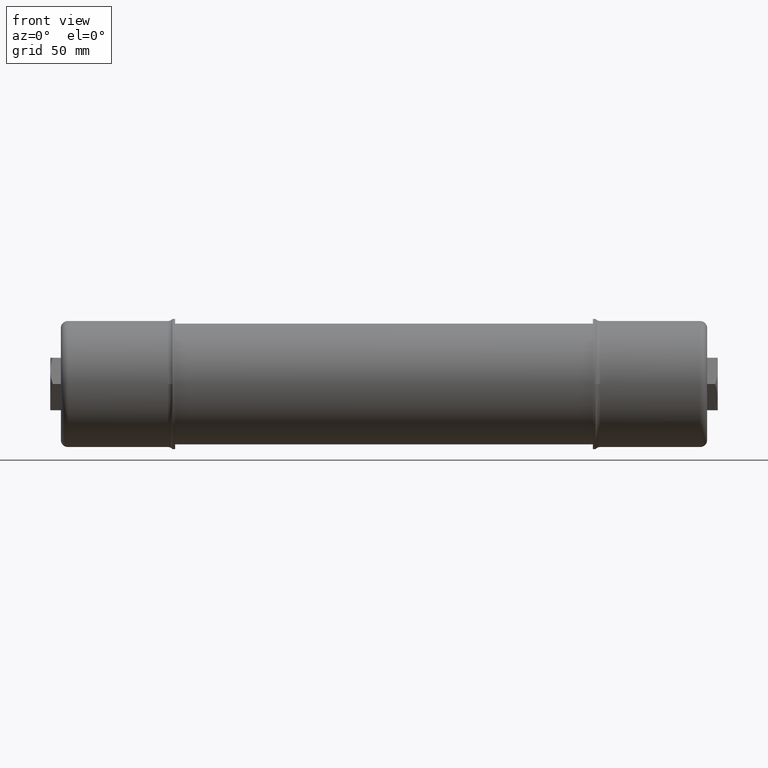
[diagram: clean part render]
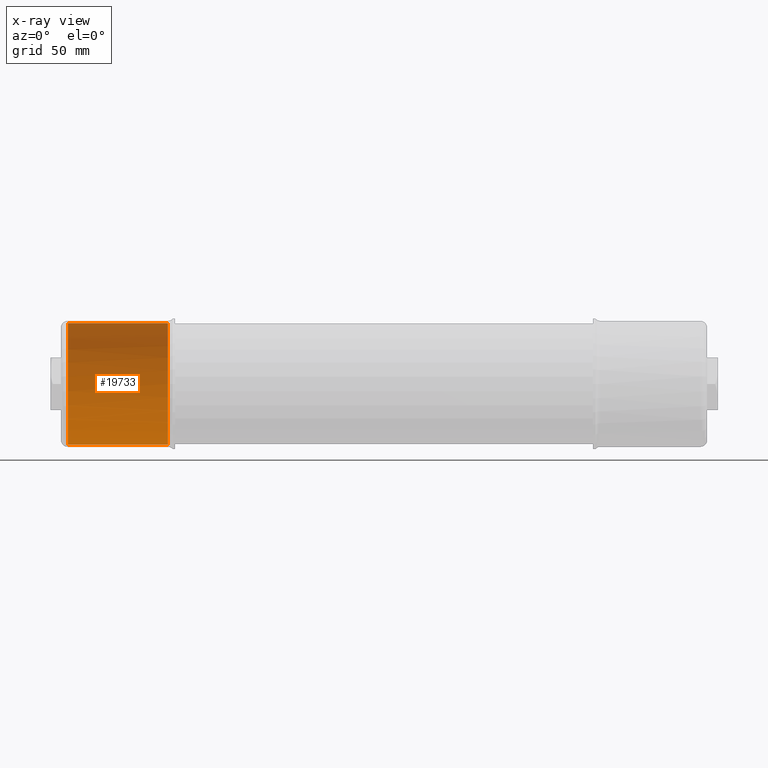
[diagram: x-ray — body ghosted, one internal face saturated and labeled with its STEP entity id]
A machine part, front view, then the same camera in x-ray: the body is ghosted and one INTERNAL B-rep face — a face not visible from any outside direction — is saturated and labeled: STEP entity #19733.
In plain terms, the highlighted cylindrical surface (partial cylindrical patch) has radius 36.703 mm, axis along (1, -0, 0).
Its self-contained STEP definition (entity closure, byte-faithful):
#319 = VERTEX_POINT ( 'NONE', #16680 ) ;
#437 = CARTESIAN_POINT ( 'NONE',  ( 0.04499999999999945016, 3.311999999999966082, 1.444999999999963647 ) ) ;
#2042 = AXIS2_PLACEMENT_3D ( 'NONE', #5575, #17368, #31639 ) ;
#3916 = VECTOR ( 'NONE', #22354, 39.37007874015748143 ) ;
#5193 = CIRCLE ( 'NONE', #2042, 1.444999999999999396 ) ;
#5575 = CARTESIAN_POINT ( 'NONE',  ( 0.04500000000000019956, 3.311999999999965638, -3.577046309787705273E-14 ) ) ;
#6435 = CARTESIAN_POINT ( 'NONE',  ( 2.428620000000018209, 3.311999999999965638, -3.452455628098159002E-14 ) ) ;
#6654 = DIRECTION ( 'NONE',  ( 1.000000000000000000, -6.121189672418499660E-17, 5.226952353543994727E-16 ) ) ;
#8537 = CARTESIAN_POINT ( 'NONE',  ( 2.428620000000019097, 3.311999999999965194, -1.445000000000034479 ) ) ;
#9428 = CARTESIAN_POINT ( 'NONE',  ( 2.428620000000018209, 3.311999999999965638, -3.452455628098159002E-14 ) ) ;
#10303 = FACE_OUTER_BOUND ( 'NONE', #34579, .T. ) ;
#10767 = CARTESIAN_POINT ( 'NONE',  ( 2.428620000000018209, 4.756999999999965922, -3.410153268288647014E-14 ) ) ;
#12829 = VERTEX_POINT ( 'NONE', #10767 ) ;
#15370 = AXIS2_PLACEMENT_3D ( 'NONE', #16370, #31627, #16188 ) ;
#16188 = DIRECTION ( 'NONE',  ( -5.199018673063493268E-16, -3.781104489500722960E-16, -1.000000000000000000 ) ) ;
#16370 = CARTESIAN_POINT ( 'NONE',  ( -0.06500000000000052958, 3.311999999999965638, -3.582795957376603161E-14 ) ) ;
#16680 = CARTESIAN_POINT ( 'NONE',  ( 0.04499999999999945016, 3.311999999999965194, -1.445000000000035367 ) ) ;
#17368 = DIRECTION ( 'NONE',  ( 1.000000000000000000, -6.121189672418499660E-17, 5.226952353543994727E-16 ) ) ;
#17673 = EDGE_CURVE ( 'NONE', #319, #38547, #5193, .T. ) ;
#19065 = EDGE_CURVE ( 'NONE', #27358, #12829, #24138, .T. ) ;
#19733 = ADVANCED_FACE ( 'NONE', ( #10303 ), #28918, .F. ) ;
#19800 = AXIS2_PLACEMENT_3D ( 'NONE', #9428, #6654, #30587 ) ;
#20232 = EDGE_CURVE ( 'NONE', #319, #27358, #22143, .T. ) ;
#21264 = ORIENTED_EDGE ( 'NONE', *, *, #17673, .F. ) ;
#21447 = ORIENTED_EDGE ( 'NONE', *, *, #24444, .F. ) ;
#22143 = LINE ( 'NONE', #37432, #32301 ) ;
#22225 = EDGE_CURVE ( 'NONE', #12829, #34642, #37516, .T. ) ;
#22354 = DIRECTION ( 'NONE',  ( 1.000000000000000000, -6.121189672418499660E-17, 5.226952353543994727E-16 ) ) ;
#24138 = CIRCLE ( 'NONE', #19800, 1.445000000000000062 ) ;
#24444 = EDGE_CURVE ( 'NONE', #38547, #34642, #28264, .T. ) ;
#25122 = CARTESIAN_POINT ( 'NONE',  ( -0.06499999999999978018, 3.311999999999966082, 1.444999999999959428 ) ) ;
#27223 = DIRECTION ( 'NONE',  ( 1.000000000000000000, -6.121189672418499660E-17, 5.226952353543994727E-16 ) ) ;
#27299 = ORIENTED_EDGE ( 'NONE', *, *, #20232, .T. ) ;
#27358 = VERTEX_POINT ( 'NONE', #8537 ) ;
#28264 = LINE ( 'NONE', #25122, #3916 ) ;
#28918 = CYLINDRICAL_SURFACE ( 'NONE', #15370, 1.444999999999995177 ) ;
#29170 = DIRECTION ( 'NONE',  ( 1.000000000000000000, -6.121189672418499660E-17, 5.226952353543994727E-16 ) ) ;
#30587 = DIRECTION ( 'NONE',  ( -5.671656734251065458E-16, -3.781104489500710141E-16, -1.000000000000000000 ) ) ;
#30635 = AXIS2_PLACEMENT_3D ( 'NONE', #6435, #27223, #36610 ) ;
#31627 = DIRECTION ( 'NONE',  ( 1.000000000000000000, -6.121189672418499660E-17, 5.226952353543994727E-16 ) ) ;
#31639 = DIRECTION ( 'NONE',  ( -5.199018673063478477E-16, -3.781104489500712113E-16, -1.000000000000000000 ) ) ;
#31863 = ORIENTED_EDGE ( 'NONE', *, *, #22225, .T. ) ;
#31918 = ORIENTED_EDGE ( 'NONE', *, *, #19065, .T. ) ;
#32301 = VECTOR ( 'NONE', #29170, 39.37007874015748143 ) ;
#34294 = CARTESIAN_POINT ( 'NONE',  ( 2.428620000000017320, 3.311999999999966082, 1.444999999999965645 ) ) ;
#34579 = EDGE_LOOP ( 'NONE', ( #21447, #21264, #27299, #31918, #31863 ) ) ;
#34642 = VERTEX_POINT ( 'NONE', #34294 ) ;
#36610 = DIRECTION ( 'NONE',  ( -5.671656734251065458E-16, -3.781104489500710141E-16, -1.000000000000000000 ) ) ;
#37432 = CARTESIAN_POINT ( 'NONE',  ( -0.06500000000000129285, 3.311999999999965194, -1.445000000000030926 ) ) ;
#37516 = CIRCLE ( 'NONE', #30635, 1.445000000000000062 ) ;
#38547 = VERTEX_POINT ( 'NONE', #437 ) ;